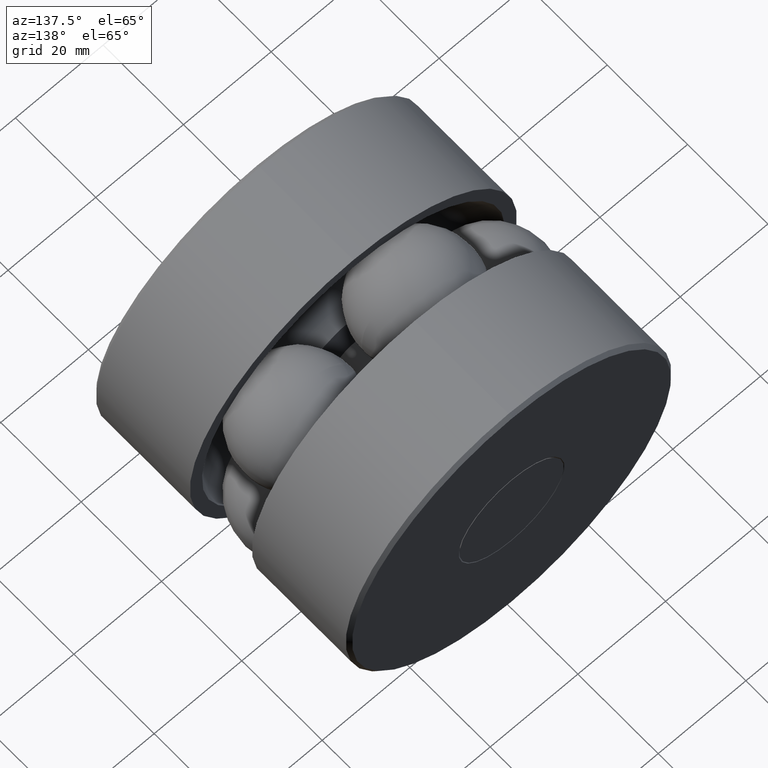
[diagram: clean part render]
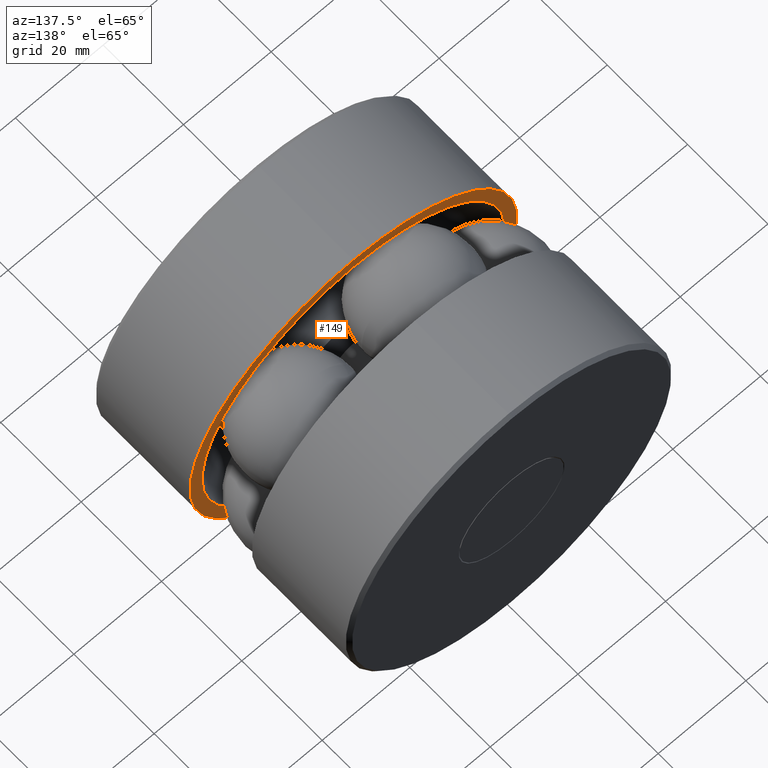
[diagram: same view with one face highlighted and labeled with its STEP entity id]
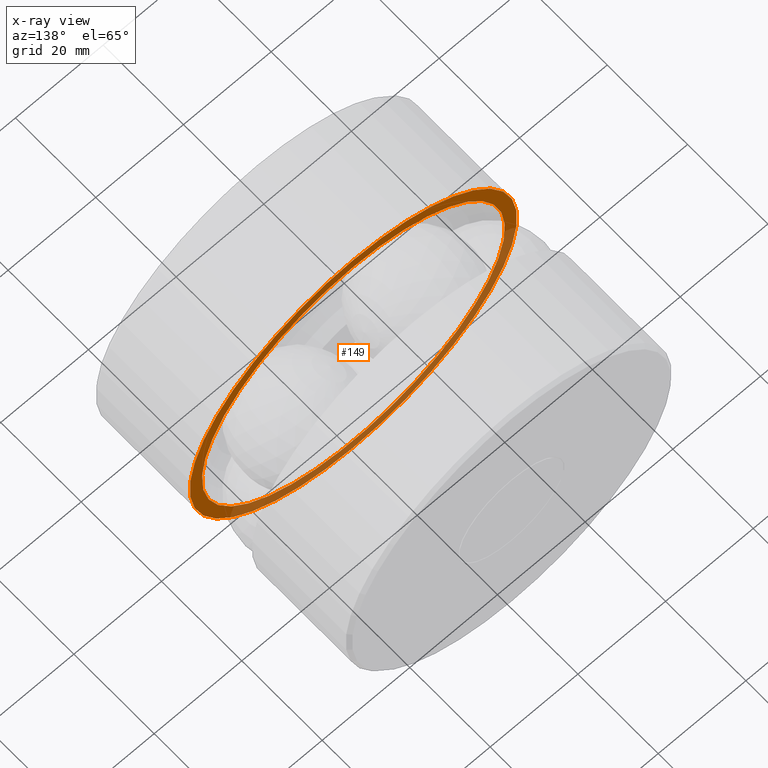
[diagram: x-ray of the same camera — body ghosted, the highlighted face saturated]
A machine part, auxiliary view. The second image highlights one B-rep face of the part: STEP entity #149.
The next image is the same camera in x-ray: the body ghosted, the highlighted face saturated — about 38% of this face is hidden behind the body in this view.
In plain terms, the highlighted planar face has unit normal (-0, 1, 0).
Its self-contained STEP definition (entity closure, byte-faithful):
#37 = CARTESIAN_POINT ( 'NONE',  ( -1.469000000000000100, 0.9499999999999994000, 0.0000000000000000000 ) ) ;
#69 = FACE_OUTER_BOUND ( 'NONE', #428, .T. ) ;
#75 = CARTESIAN_POINT ( 'NONE',  ( 0.0000000000000000000, 0.9499999999999994000, 1.469000000000000100 ) ) ;
#101 = AXIS2_PLACEMENT_3D ( 'NONE', #359, #379, #309 ) ;
#137 = AXIS2_PLACEMENT_3D ( 'NONE', #207, #536, #295 ) ;
#149 = ADVANCED_FACE ( 'NONE', ( #69, #272 ), #407, .T. ) ;
#180 = AXIS2_PLACEMENT_3D ( 'NONE', #37, #363, #235 ) ;
#203 = ORIENTED_EDGE ( 'NONE', *, *, #382, .T. ) ;
#207 = CARTESIAN_POINT ( 'NONE',  ( 0.0000000000000000000, 0.9499999999999994000, 0.0000000000000000000 ) ) ;
#213 = CARTESIAN_POINT ( 'NONE',  ( 0.0000000000000000000, 0.9499999999999994000, 1.359999999999999900 ) ) ;
#224 = CIRCLE ( 'NONE', #101, 1.469000000000000100 ) ;
#227 = VERTEX_POINT ( 'NONE', #213 ) ;
#235 = DIRECTION ( 'NONE',  ( 0.0000000000000000000, 0.0000000000000000000, 1.000000000000000000 ) ) ;
#263 = CIRCLE ( 'NONE', #137, 1.359999999999999900 ) ;
#272 = FACE_BOUND ( 'NONE', #313, .T. ) ;
#295 = DIRECTION ( 'NONE',  ( 0.0000000000000000000, 0.0000000000000000000, 1.000000000000000000 ) ) ;
#309 = DIRECTION ( 'NONE',  ( 0.0000000000000000000, 0.0000000000000000000, 1.000000000000000000 ) ) ;
#313 = EDGE_LOOP ( 'NONE', ( #492 ) ) ;
#336 = VERTEX_POINT ( 'NONE', #75 ) ;
#359 = CARTESIAN_POINT ( 'NONE',  ( 0.0000000000000000000, 0.9499999999999994000, 0.0000000000000000000 ) ) ;
#363 = DIRECTION ( 'NONE',  ( -0.0000000000000000000, 1.000000000000000000, 0.0000000000000000000 ) ) ;
#379 = DIRECTION ( 'NONE',  ( -0.0000000000000000000, 1.000000000000000000, -0.0000000000000000000 ) ) ;
#382 = EDGE_CURVE ( 'NONE', #336, #336, #224, .T. ) ;
#405 = EDGE_CURVE ( 'NONE', #227, #227, #263, .T. ) ;
#407 = PLANE ( 'NONE',  #180 ) ;
#428 = EDGE_LOOP ( 'NONE', ( #203 ) ) ;
#492 = ORIENTED_EDGE ( 'NONE', *, *, #405, .F. ) ;
#536 = DIRECTION ( 'NONE',  ( -0.0000000000000000000, 1.000000000000000000, -0.0000000000000000000 ) ) ;